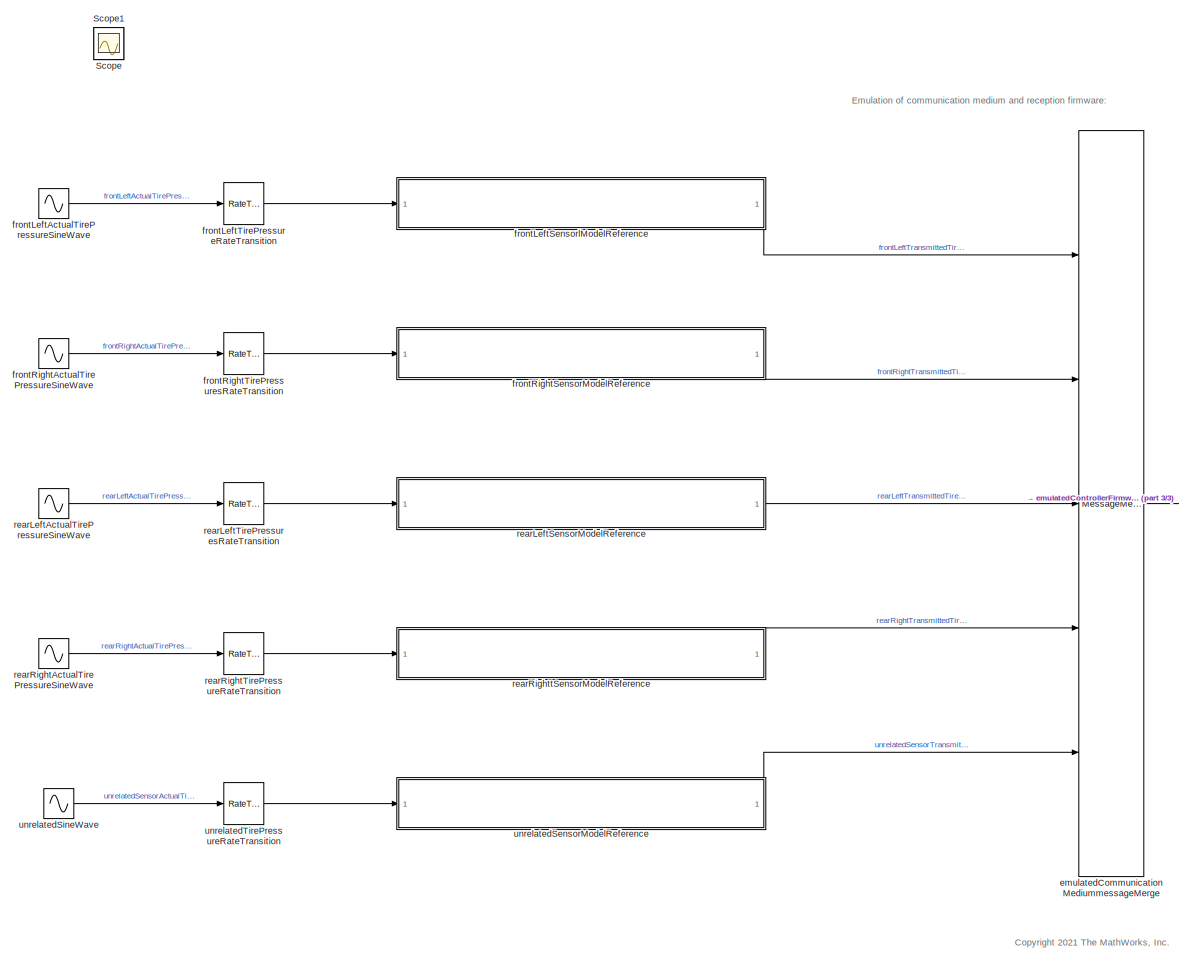
[diagram: root canvas - part 1/3, center side, full height]
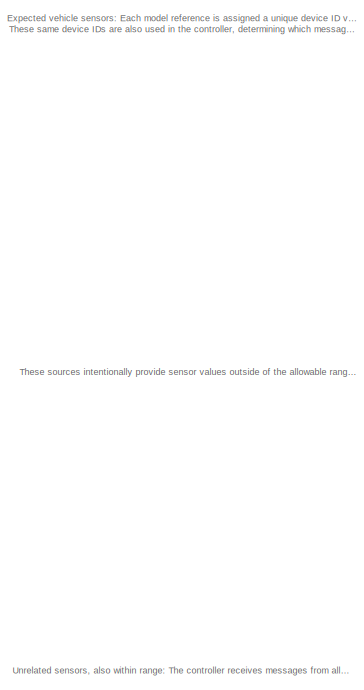
[diagram: root canvas - part 2/3, middle left region]
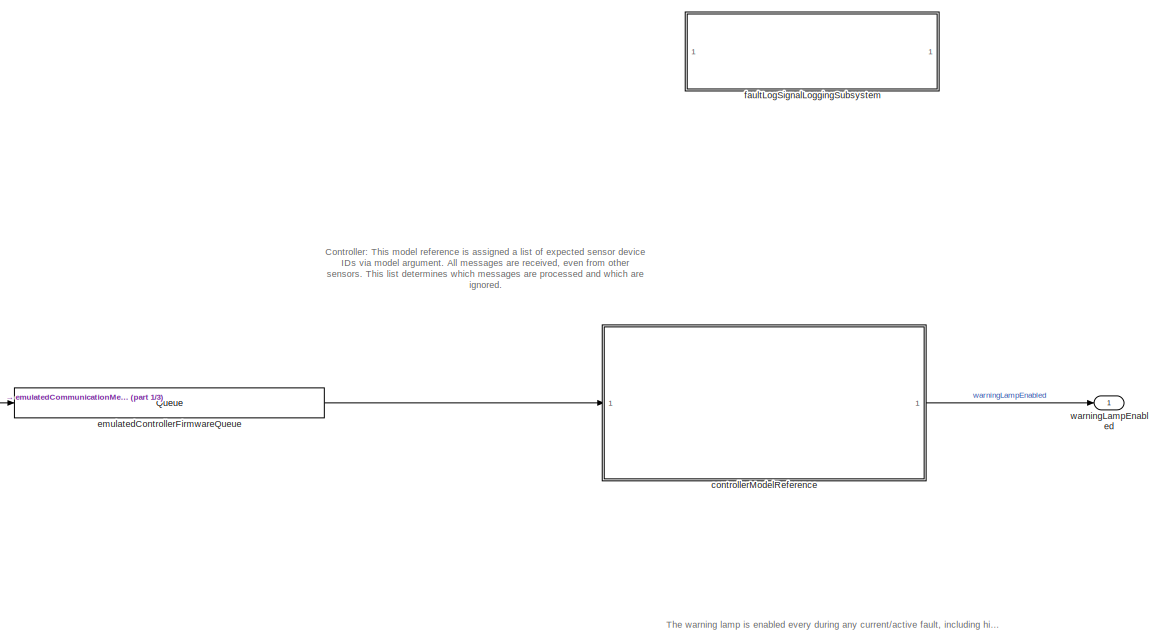
[diagram: root canvas - part 3/3, middle right region]
MODEL slx_f8b09790fdff
KIND model
WORKSPACE source: MATLAB code (in-file) + mxarray member
WORKSPACE cmdLim = Simulink.Parameter
WORKSPACE code: cmdLim.Value = 15;
WORKSPACE code: cmdLim.Description = 'Limit for controlling the maximum surface command angle.';
WORKSPACE code: cmdLim.Min = 0;
WORKSPACE code: cmdLim.Max = 90;
WORKSPACE code: cmdLim.DocUnits = 'deg';
WORKSPACE dispGain = Simulink.Parameter
WORKSPACE code: dispGain.Value = 0.75;
WORKSPACE code: dispGain.Description = 'Gain applied to the displacement error.';
WORKSPACE code: dispGain.Min = 0;
WORKSPACE code: dispGain.Max = [];
WORKSPACE code: dispGain.DocUnits = 'deg/sec/deg';
WORKSPACE dispLim = Simulink.Parameter
WORKSPACE code: dispLim.Value = 30;
WORKSPACE code: dispLim.Description = 'Limit for controlling the maximum commanded angle.';
WORKSPACE code: dispLim.Min = 0;
WORKSPACE code: dispLim.Max = 180;
WORKSPACE code: dispLim.DocUnits = 'deg';
WORKSPACE intGain = Simulink.Parameter
WORKSPACE code: intGain.Value = 0.5;
WORKSPACE code: intGain.Description = 'Gain applied to the integral error.';
WORKSPACE code: intGain.Min = 0;
WORKSPACE code: intGain.Max = [];
WORKSPACE code: intGain.DocUnits = 'deg/sec/deg/sec';
WORKSPACE intLim = Simulink.Parameter
WORKSPACE code: intLim.Value = 5;
WORKSPACE code: intLim.Description = 'Limit for controlling the maximum commanded angle.';
WORKSPACE code: intLim.Min = 0;
WORKSPACE code: intLim.Max = 90;
WORKSPACE code: intLim.DocUnits = 'deg';
WORKSPACE rateGain = Simulink.Parameter
WORKSPACE code: rateGain.Value = 2;
WORKSPACE code: rateGain.Description = 'Gain applied to the rate error.';
WORKSPACE code: rateGain.Min = 0;
WORKSPACE code: rateGain.Max = [];
WORKSPACE code: rateGain.DocUnits = 'deg/deg/sec';
WORKSPACE rateLim = Simulink.Parameter
WORKSPACE code: rateLim.Value = 6;
WORKSPACE code: rateLim.Description = 'Limit for controlling the maximum commanded angle.';
WORKSPACE code: rateLim.Min = 0;
WORKSPACE code: rateLim.Max = 180;
WORKSPACE code: rateLim.DocUnits = 'deg/sec';
WORKSPACE hdgGain = Simulink.Parameter
WORKSPACE code: hdgGain.Value = 0.015;
WORKSPACE CONTROLLER_CLIENT_ID_LIST: Simulink.Parameter (value not decoded)
WORKSPACE UNRELATED_DEVICE_ID: Simulink.Parameter (value not decoded)
BLOCK [Scope] Scope
  Floating = off
  IOType = viewer
  NumInputPorts = 1
  Ports = []
  ScopeSpecificationString = Simulink.scopes.TimeScopeBlockCfg('CurrentConfiguration', extmgr.ConfigurationSet(extmgr.Configuration('Core','General UI',true),extmgr.Configuration('Core','Source UI',true),extmgr.Configuration('Sources','WiredSimulink',true),extmgr.Configuration('Visuals','Time Domain',true),extmgr.Configuration('Tools','Plot Navigation',true),extmgr.Configuration('Tools','Measurements',true,'Version','2021b'))...<+19ch>
BLOCK [Scope] Scope1
  Floating = off
  IOType = viewer
  NumInputPorts = 1
  Ports = []
  ScopeSpecificationString = Simulink.scopes.TimeScopeBlockCfg('CurrentConfiguration', extmgr.ConfigurationSet(extmgr.Configuration('Core','General UI',true),extmgr.Configuration('Core','Source UI',true),extmgr.Configuration('Sources','WiredSimulink',true,'DataLoggingVariableName','ScopeData1'),extmgr.Configuration('Visuals','Time Domain',true),extmgr.Configuration('Tools','Plot Navigation',true),extmgr.Configuration('Tools',...<+58ch>
BLOCK [ModelReference] controllerModelReference
  AttributesFormatString = Client device ID list model argument: %<ParameterArgumentValuesAsString>
  InputPortMessageModes = m
  ModelNameDialog = controllerCoreAlgorithm
  ModelReferenceVersion = 4.0
  Ports = [1, 1]
  UsingDefaultArgumentValue = 0
BLOCK [MessageMerge] emulatedCommunicationMediummessageMerge
  InputPortMap = u1,u2,u3,u4,u5
  InputPortMessageModes = m,m,m,m,m
  NumberInputPorts = 5
  OutputPortMap = o0
  OutputPortMessageModes = m
  Ports = [5, 1]
BLOCK [Queue] emulatedControllerFirmwareQueue
  Capacity = PER_STEP_MAXIMUM_MESSAGES_TO_PROCESS
  InputPortMap = u0
  InputPortMessageModes = m
  OutputPortMap = o5
  OutputPortMessageModes = m
  OverwriteOldest = on
  Ports = [1, 1]
  QueueType = LIFO
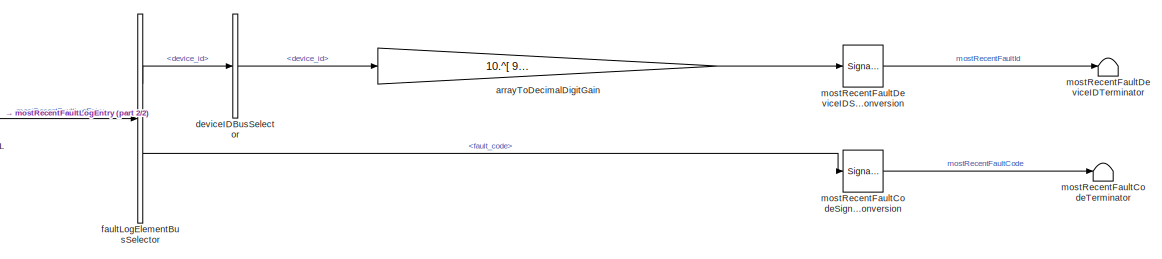
[diagram: faultLogSignalLoggingSubsystem - part 1/2, center side, full height]
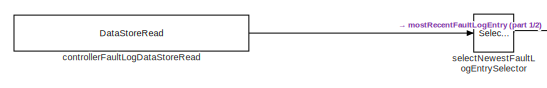
[diagram: faultLogSignalLoggingSubsystem - part 2/2, middle left region]
BLOCK [SubSystem] faultLogSignalLoggingSubsystem
  Ports = []
  RequestExecContextInheritance = off
BLOCK [Gain] faultLogSignalLoggingSubsystem/arrayToDecimalDigitGain
  AttributesFormatString = Multiplication type: %<Multiplication>
  Gain = 10.^[ 9, 8, 7, 6, 5, 4, 3, 2, 1, 0]
  Multiplication = Matrix(K*u)
BLOCK [DataStoreRead] faultLogSignalLoggingSubsystem/controllerFaultLogDataStoreRead
  DataStoreName = controller_fault_log
  IndexOptions = Index vector (dialog)
  Indices = 1
  OutputSizes = 1
  Ports = [0, 1]
BLOCK [BusSelector] faultLogSignalLoggingSubsystem/deviceIDBusSelector
  OutputSignals = device_id
  Ports = [1, 1]
BLOCK [BusSelector] faultLogSignalLoggingSubsystem/faultLogElementBusSelector
  OutputSignals = device_id,fault_code
  Ports = [1, 2]
BLOCK [SignalConversion] faultLogSignalLoggingSubsystem/mostRecentFaultCodeSignalConversion
  OverrideOpt = off
BLOCK [Terminator] faultLogSignalLoggingSubsystem/mostRecentFaultCodeTerminator
BLOCK [SignalConversion] faultLogSignalLoggingSubsystem/mostRecentFaultDeviceIDSignalConversion
  OverrideOpt = off
BLOCK [Terminator] faultLogSignalLoggingSubsystem/mostRecentFaultDeviceIDTerminator
BLOCK [Selector] faultLogSignalLoggingSubsystem/selectNewestFaultLogEntrySelector
  IndexMode = Zero-based
  IndexOptions = Index vector (dialog)
  Indices = 0
  InputPortWidth = 10
  OutputSizes = 1
  Ports = [1, 1]
BLOCK [Sin] frontLeftActualTirePressureSineWave
  Amplitude = 0.25
  AttributesFormatString = Frequency: %<Frequency>\nAmplitude: %<Amplitude>\nBias: %<Bias>\nPhase: %<Phase>\nSample time: %<SampleTime>
  Bias = 1.5
  Frequency = 0.5
  Ports = [0, 1]
  SampleTime = SENSOR_SAMPLE_TIME
BLOCK [ModelReference] frontLeftSensorlModelReference
  AttributesFormatString = Local device ID model argument: %<ParameterArgumentValuesAsString>
  ModelNameDialog = sensorCoreAlgorithm
  ModelReferenceVersion = 4.0
  OutputPortMessageModes = m
  Ports = [1, 1]
  UsingDefaultArgumentValue = 0
BLOCK [RateTransition] frontLeftTirePressureRateTransition
BLOCK [Sin] frontRightActualTirePressureSineWave
  Amplitude = 0.25
  AttributesFormatString = Frequency: %<Frequency>\nAmplitude: %<Amplitude>\nBias: %<Bias>\nPhase: %<Phase>\nSample time: %<SampleTime>
  Bias = 2.5
  Phase = 1
  Ports = [0, 1]
  SampleTime = SENSOR_SAMPLE_TIME
BLOCK [ModelReference] frontRightSensorModelReference
  AttributesFormatString = Local device ID model argument: %<ParameterArgumentValuesAsString>
  ModelNameDialog = sensorCoreAlgorithm
  ModelReferenceVersion = 4.0
  OutputPortMessageModes = m
  Ports = [1, 1]
  UsingDefaultArgumentValue = 0
BLOCK [RateTransition] frontRightTirePressuresRateTransition
BLOCK [Sin] rearLeftActualTirePressureSineWave
  Amplitude = 0.25
  AttributesFormatString = Frequency: %<Frequency>\nAmplitude: %<Amplitude>\nBias: %<Bias>\nPhase: %<Phase>\nSample time: %<SampleTime>
  Bias = 3.5
  Phase = 2
  Ports = [0, 1]
  SampleTime = SENSOR_SAMPLE_TIME
BLOCK [ModelReference] rearLeftSensorModelReference
  AttributesFormatString = Local device ID model argument: %<ParameterArgumentValuesAsString>
  ModelNameDialog = sensorCoreAlgorithm
  ModelReferenceVersion = 4.0
  OutputPortMessageModes = m
  Ports = [1, 1]
  UsingDefaultArgumentValue = 0
BLOCK [RateTransition] rearLeftTirePressuresRateTransition
BLOCK [Sin] rearRightActualTirePressureSineWave
  Amplitude = 0.25
  AttributesFormatString = Frequency: %<Frequency>\nAmplitude: %<Amplitude>\nBias: %<Bias>\nPhase: %<Phase>\nSample time: %<SampleTime>
  Bias = 4.5
  Frequency = 0.5
  Ports = [0, 1]
  SampleTime = SENSOR_SAMPLE_TIME
BLOCK [RateTransition] rearRightTirePressureRateTransition
BLOCK [ModelReference] rearRighttSensorModelReference
  AttributesFormatString = Local device ID model argument: %<ParameterArgumentValuesAsString>
  ModelNameDialog = sensorCoreAlgorithm
  ModelReferenceVersion = 4.0
  OutputPortMessageModes = m
  Ports = [1, 1]
  UsingDefaultArgumentValue = 0
BLOCK [ModelReference] unrelatedSensorModelReference
  AttributesFormatString = Local device ID model argument: %<ParameterArgumentValuesAsString>
  ModelNameDialog = sensorCoreAlgorithm
  ModelReferenceVersion = 4.0
  OutputPortMessageModes = m
  Ports = [1, 1]
  UsingDefaultArgumentValue = 0
BLOCK [Sin] unrelatedSineWave
  AttributesFormatString = Frequency: %<Frequency>\nAmplitude: %<Amplitude>\nBias: %<Bias>\nPhase: %<Phase>\nSample time: %<SampleTime>
  Bias = 5.5
  Phase = 4
  Ports = [0, 1]
  SampleTime = SENSOR_SAMPLE_TIME
BLOCK [RateTransition] unrelatedTirePressureRateTransition
BLOCK [Outport] warningLampEnabled
ANNOTATION (root): Controller: This model reference is assigned a list of expected sensor device IDs via model argument. All messages are received, even from other sensors. This list determines which messages are processed and which are ignored.
ANNOTATION (root): <copyright redacted>
ANNOTATION (root): Emulation of communication medium and reception firmware:
ANNOTATION (root): Expected vehicle sensors: Each model reference is assigned a unique device ID via model arguments. These same device IDs are also used in the controller, determining which messages to process and which to ignore.
ANNOTATION (root): The warning lamp is enabled every during any current/active fault, including high pressure, low pressure, and loss of communication.
ANNOTATION (root): These sources intentionally provide sensor values outside of the allowable range, triggering fault-logging for the sensors assigned to the controller.
ANNOTATION (root): Unrelated sensors, also within range: The controller receives messages from all sensors in range, and must detect relevant messages and discard the rest.
LINE controllerModelReference:1 -> warningLampEnabled:1
LINE emulatedCommunicationMediummessageMerge:1 -> emulatedControllerFirmwareQueue:1
LINE emulatedControllerFirmwareQueue:1 -> controllerModelReference:1
LINE faultLogSignalLoggingSubsystem/arrayToDecimalDigitGain:1 -> faultLogSignalLoggingSubsystem/mostRecentFaultDeviceIDSignalConversion:1
LINE faultLogSignalLoggingSubsystem/controllerFaultLogDataStoreRead:1 -> faultLogSignalLoggingSubsystem/selectNewestFaultLogEntrySelector:1
LINE faultLogSignalLoggingSubsystem/deviceIDBusSelector:1 -> faultLogSignalLoggingSubsystem/arrayToDecimalDigitGain:1
LINE faultLogSignalLoggingSubsystem/faultLogElementBusSelector:1 -> faultLogSignalLoggingSubsystem/deviceIDBusSelector:1
LINE faultLogSignalLoggingSubsystem/faultLogElementBusSelector:2 -> faultLogSignalLoggingSubsystem/mostRecentFaultCodeSignalConversion:1
LINE faultLogSignalLoggingSubsystem/mostRecentFaultCodeSignalConversion:1 -> faultLogSignalLoggingSubsystem/mostRecentFaultCodeTerminator:1
LINE faultLogSignalLoggingSubsystem/mostRecentFaultDeviceIDSignalConversion:1 -> faultLogSignalLoggingSubsystem/mostRecentFaultDeviceIDTerminator:1
LINE faultLogSignalLoggingSubsystem/selectNewestFaultLogEntrySelector:1 -> faultLogSignalLoggingSubsystem/faultLogElementBusSelector:1
LINE frontLeftActualTirePressureSineWave:1 -> frontLeftTirePressureRateTransition:1
LINE frontLeftSensorlModelReference:1 -> emulatedCommunicationMediummessageMerge:1
LINE frontLeftTirePressureRateTransition:1 -> frontLeftSensorlModelReference:1
LINE frontRightActualTirePressureSineWave:1 -> frontRightTirePressuresRateTransition:1
LINE frontRightSensorModelReference:1 -> emulatedCommunicationMediummessageMerge:2
LINE frontRightTirePressuresRateTransition:1 -> frontRightSensorModelReference:1
LINE rearLeftActualTirePressureSineWave:1 -> rearLeftTirePressuresRateTransition:1
LINE rearLeftSensorModelReference:1 -> emulatedCommunicationMediummessageMerge:3
LINE rearLeftTirePressuresRateTransition:1 -> rearLeftSensorModelReference:1
LINE rearRightActualTirePressureSineWave:1 -> rearRightTirePressureRateTransition:1
LINE rearRightTirePressureRateTransition:1 -> rearRighttSensorModelReference:1
LINE rearRighttSensorModelReference:1 -> emulatedCommunicationMediummessageMerge:4
LINE unrelatedSensorModelReference:1 -> emulatedCommunicationMediummessageMerge:5
LINE unrelatedSineWave:1 -> unrelatedTirePressureRateTransition:1
LINE unrelatedTirePressureRateTransition:1 -> unrelatedSensorModelReference:1
